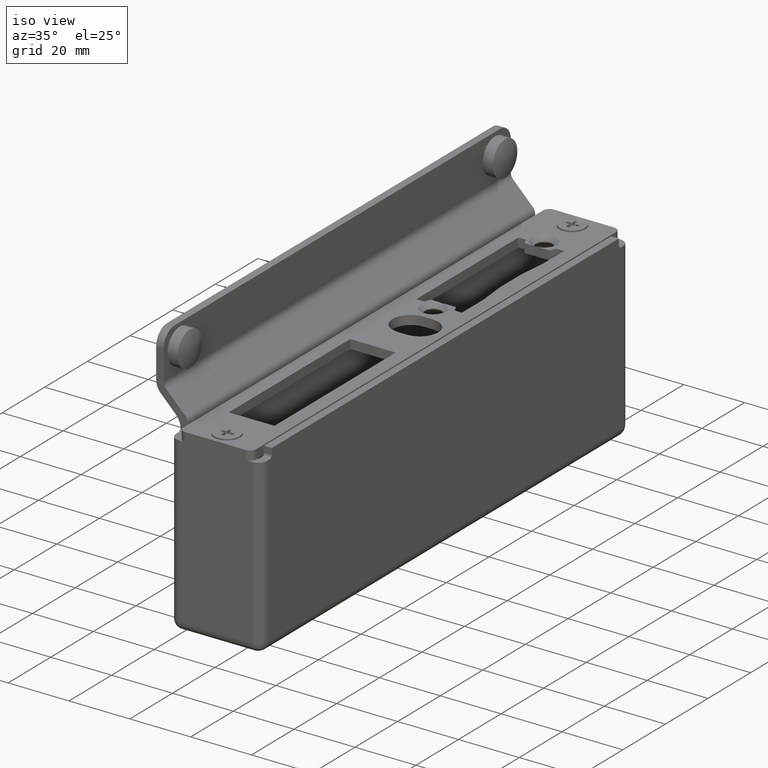
[diagram: clean part render]
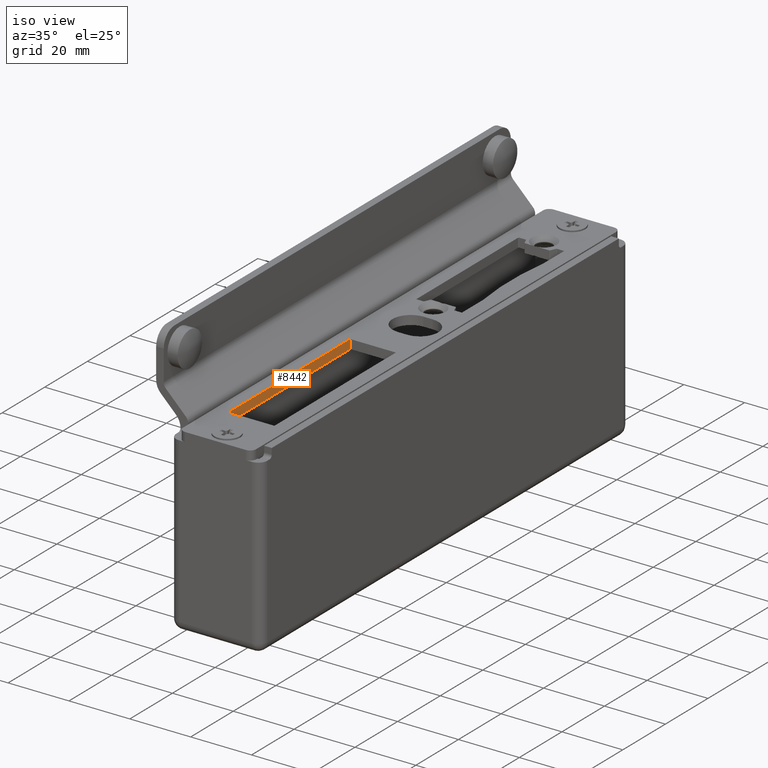
[diagram: same view with one face highlighted and labeled with its STEP entity id]
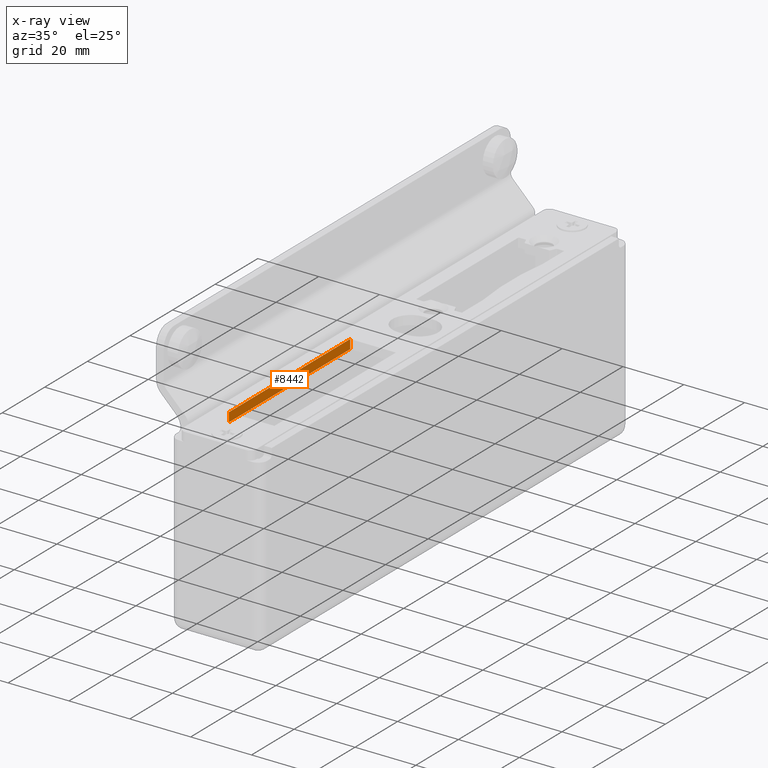
[diagram: x-ray of the same camera — body ghosted, the highlighted face saturated]
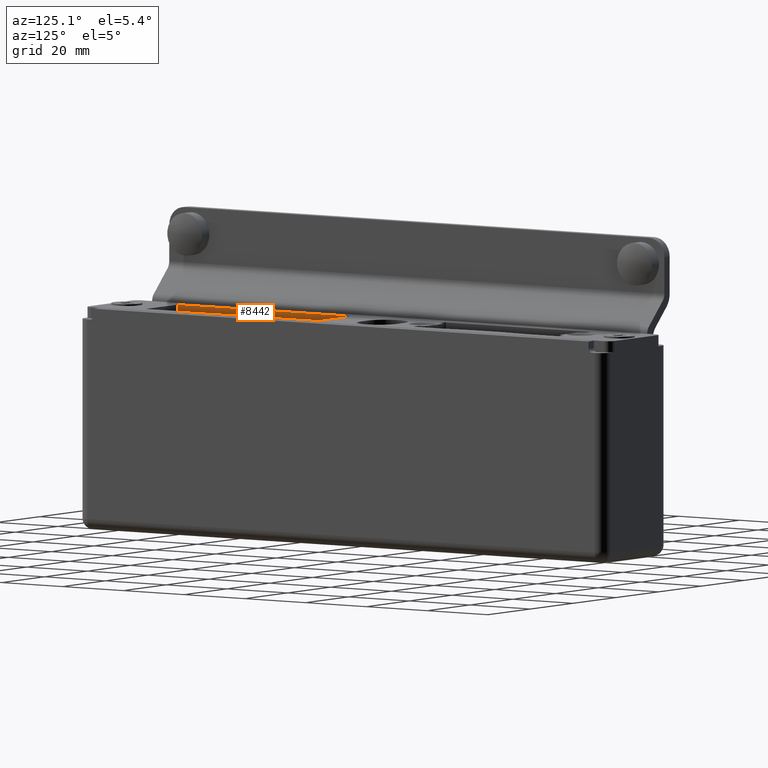
[diagram: same view with one face highlighted and labeled with its STEP entity id]
A machine part, iso view. The second image highlights one B-rep face of the part: STEP entity #8442.
The next image is the same camera in x-ray: the body ghosted, the highlighted face saturated — about 0% of this face is hidden behind the body in this view.
A second angle (auxiliary view) of the same face is appended — the face is thin or edge-on in the first view.
In plain terms, the highlighted planar face has unit normal (1, 0, 0).
Its self-contained STEP definition (entity closure, byte-faithful):
#157 = FACE_OUTER_BOUND ( 'NONE', #10104, .T. ) ;
#748 = PLANE ( 'NONE',  #4273 ) ;
#918 = CARTESIAN_POINT ( 'NONE',  ( -7.500000000000004441, -12.49999999999996270, 3.000000000000000000 ) ) ;
#1201 = CARTESIAN_POINT ( 'NONE',  ( -7.499999999999997335, -69.49999999999997158, 0.000000000000000000 ) ) ;
#2313 = DIRECTION ( 'NONE',  ( -0.000000000000000000, -0.000000000000000000, -1.000000000000000000 ) ) ;
#2537 = ORIENTED_EDGE ( 'NONE', *, *, #5054, .F. ) ;
#3302 = VECTOR ( 'NONE', #2313, 1000.000000000000000 ) ;
#4273 = AXIS2_PLACEMENT_3D ( 'NONE', #10158, #6649, #12324 ) ;
#4280 = CARTESIAN_POINT ( 'NONE',  ( -7.499999999999997335, -69.49999999999997158, 3.000000000000000000 ) ) ;
#4509 = CARTESIAN_POINT ( 'NONE',  ( -7.499999999999997335, -69.49999999999997158, 3.000000000000000000 ) ) ;
#5054 = EDGE_CURVE ( 'NONE', #8312, #11738, #13422, .T. ) ;
#5244 = LINE ( 'NONE', #10365, #10681 ) ;
#5429 = DIRECTION ( 'NONE',  ( 1.217349807703022609E-16, -1.000000000000000000, 0.000000000000000000 ) ) ;
#5801 = DIRECTION ( 'NONE',  ( 1.217349807703022609E-16, -1.000000000000000000, 0.000000000000000000 ) ) ;
#6318 = ORIENTED_EDGE ( 'NONE', *, *, #8449, .T. ) ;
#6577 = CARTESIAN_POINT ( 'NONE',  ( -7.500000000000004441, -12.49999999999996270, 0.000000000000000000 ) ) ;
#6599 = DIRECTION ( 'NONE',  ( -0.000000000000000000, -0.000000000000000000, -1.000000000000000000 ) ) ;
#6649 = DIRECTION ( 'NONE',  ( 1.000000000000000000, 1.217349807703022609E-16, -0.000000000000000000 ) ) ;
#6789 = EDGE_CURVE ( 'NONE', #10321, #12287, #5244, .T. ) ;
#7045 = CARTESIAN_POINT ( 'NONE',  ( -7.500000000000004441, -12.49999999999996270, 3.000000000000000000 ) ) ;
#8312 = VERTEX_POINT ( 'NONE', #8454 ) ;
#8409 = ORIENTED_EDGE ( 'NONE', *, *, #6789, .T. ) ;
#8442 = ADVANCED_FACE ( 'NONE', ( #157 ), #748, .T. ) ;
#8449 = EDGE_CURVE ( 'NONE', #12287, #11738, #14605, .T. ) ;
#8454 = CARTESIAN_POINT ( 'NONE',  ( -7.500000000000004441, -12.49999999999996270, 0.000000000000000000 ) ) ;
#9953 = ORIENTED_EDGE ( 'NONE', *, *, #14585, .F. ) ;
#10104 = EDGE_LOOP ( 'NONE', ( #2537, #9953, #8409, #6318 ) ) ;
#10158 = CARTESIAN_POINT ( 'NONE',  ( -7.500000000000004441, -12.49999999999996270, 3.000000000000000000 ) ) ;
#10321 = VERTEX_POINT ( 'NONE', #918 ) ;
#10365 = CARTESIAN_POINT ( 'NONE',  ( -7.500000000000004441, -12.49999999999996270, 3.000000000000000000 ) ) ;
#10681 = VECTOR ( 'NONE', #5801, 1000.000000000000000 ) ;
#11738 = VERTEX_POINT ( 'NONE', #1201 ) ;
#12287 = VERTEX_POINT ( 'NONE', #4509 ) ;
#12324 = DIRECTION ( 'NONE',  ( -1.217349807703022609E-16, 1.000000000000000000, 0.000000000000000000 ) ) ;
#12994 = VECTOR ( 'NONE', #6599, 1000.000000000000000 ) ;
#13221 = LINE ( 'NONE', #7045, #3302 ) ;
#13422 = LINE ( 'NONE', #6577, #14669 ) ;
#14585 = EDGE_CURVE ( 'NONE', #10321, #8312, #13221, .T. ) ;
#14605 = LINE ( 'NONE', #4280, #12994 ) ;
#14669 = VECTOR ( 'NONE', #5429, 1000.000000000000000 ) ;